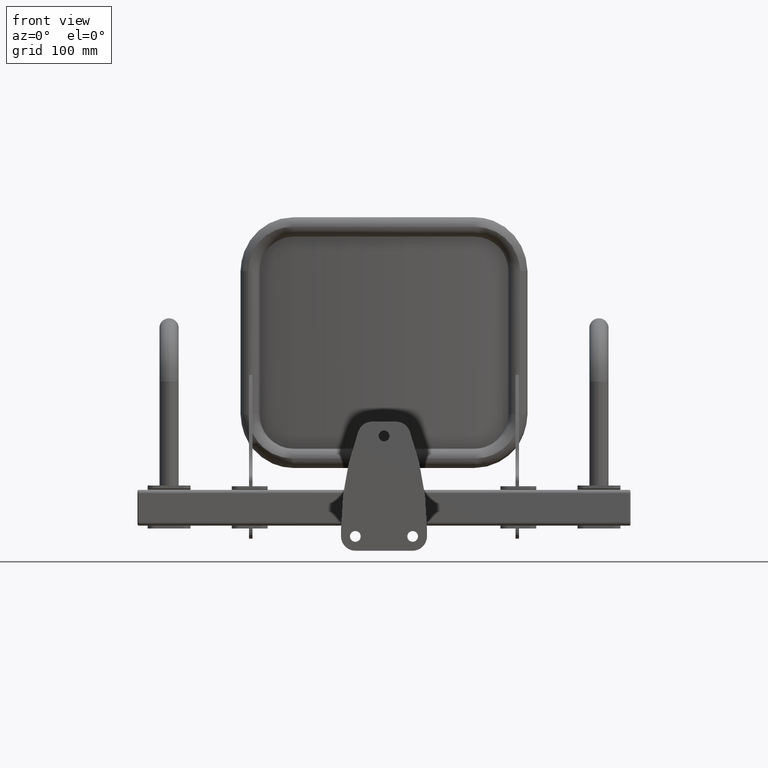
[diagram: clean part render]
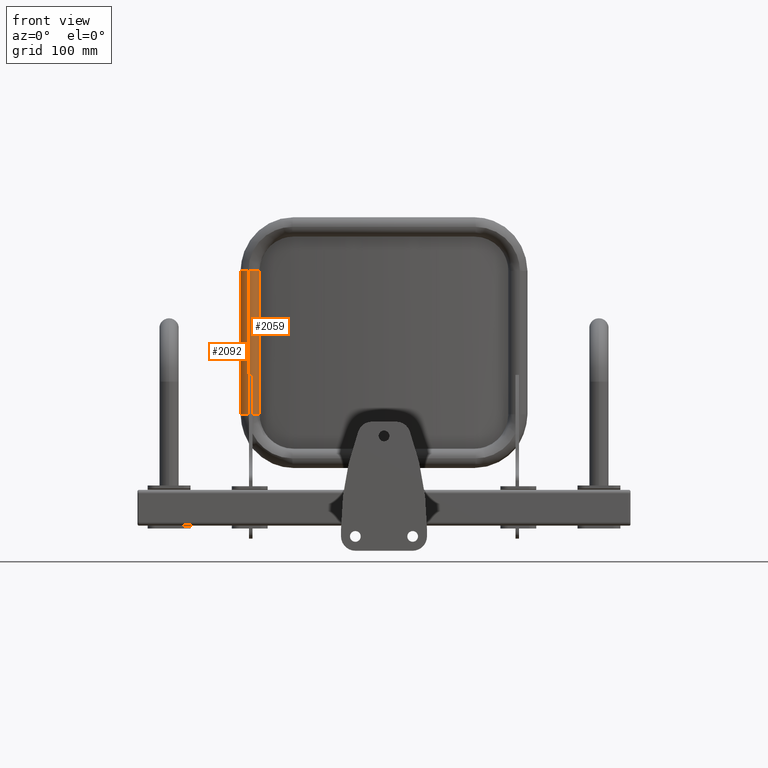
[diagram: same view with one multi-face feature highlighted, each face labeled with its STEP entity id]
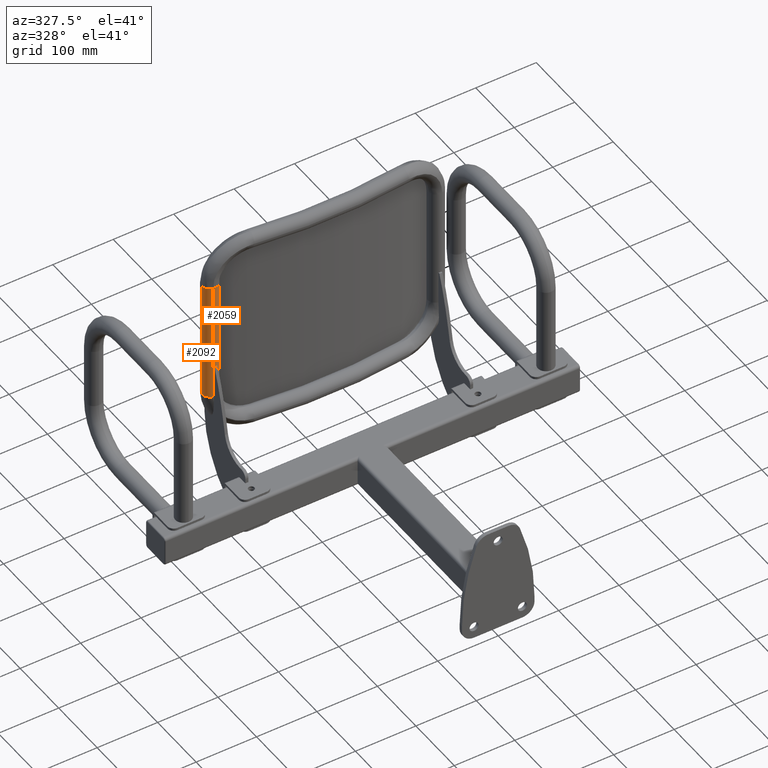
[diagram: same view with one multi-face feature highlighted, each face labeled with its STEP entity id]
A machine part, front view. The highlighted faces form ONE feature: a constant-radius fillet chain: 2 tangent blend faces with common blend radius 13.45 mm. The faces share edges in the B-rep.
A second angle (auxiliary view) of the same feature is appended — it is thin or edge-on in the first view.
Their STEP definitions:
[1] entity #2059 (Cylinder):
#27 = EDGE_CURVE ( 'NONE', #9449, #9481, #6355, .T. ) ;
#32 = EDGE_CURVE ( 'NONE', #7043, #1785, #6348, .T. ) ;
#33 = EDGE_CURVE ( 'NONE', #1785, #9449, #6359, .T. ) ;
#34 = EDGE_CURVE ( 'NONE', #9481, #9467, #6356, .T. ) ;
#35 = EDGE_CURVE ( 'NONE', #1796, #9467, #6361, .T. ) ;
#36 = EDGE_CURVE ( 'NONE', #5020, #5030, #6357, .T. ) ;
#37 = EDGE_CURVE ( 'NONE', #7043, #5030, #6364, .T. ) ;
#1595 = CARTESIAN_POINT ( 'NONE',  ( -183.5000000000000000, -15.82520922387020300, -100.0000000000000000 ) ) ;
#1613 = CARTESIAN_POINT ( 'NONE',  ( -173.7084834243087000, -5.689957515842398700, 100.0000000000000000 ) ) ;
#1627 = CARTESIAN_POINT ( 'NONE',  ( -173.7084834243087000, -5.689957515842372100, -100.0000000000000000 ) ) ;
#1785 = VERTEX_POINT ( 'NONE', #3302 ) ;
#1796 = VERTEX_POINT ( 'NONE', #3318 ) ;
#1923 = ORIENTED_EDGE ( 'NONE', *, *, #27, .T. ) ;
#2059 = ADVANCED_FACE ( 'NONE', ( #8591 ), #8595, .T. ) ;
#2925 = EDGE_CURVE ( 'NONE', #5020, #1796, #5631, .T. ) ;
#3302 = CARTESIAN_POINT ( 'NONE',  ( -183.5000000000000000, -15.82520922387022800, -45.00000000000001400 ) ) ;
#3318 = CARTESIAN_POINT ( 'NONE',  ( -189.5459862649256600, -15.97324237967123800, 100.0000000000000000 ) ) ;
#3492 = DIRECTION ( 'NONE',  ( 1.000000000000000000, 0.0000000000000000000, 0.0000000000000000000 ) ) ;
#3498 = CARTESIAN_POINT ( 'NONE',  ( -186.8437831643234100, -2.797484397562754600, -100.0000000000000000 ) ) ;
#3499 = DIRECTION ( 'NONE',  ( 0.0000000000000000000, 0.0000000000000000000, 1.000000000000000000 ) ) ;
#3500 = DIRECTION ( 'NONE',  ( 1.000000000000000000, 0.0000000000000000000, 0.0000000000000000000 ) ) ;
#4791 = DIRECTION ( 'NONE',  ( 0.0000000000000000000, 0.0000000000000000000, 1.000000000000000000 ) ) ;
#4796 = CARTESIAN_POINT ( 'NONE',  ( -189.5459862649256900, -15.97324237967134800, 175.0000000000000000 ) ) ;
#4948 = CARTESIAN_POINT ( 'NONE',  ( -183.5000000000000000, -15.82520922387022800, 175.0000000000000000 ) ) ;
#4986 = CARTESIAN_POINT ( 'NONE',  ( -186.8437831643233800, -2.797484397562777200, -45.00000000000001400 ) ) ;
#4987 = DIRECTION ( 'NONE',  ( -0.0000000000000000000, -2.618450529776312800E-016, 1.000000000000000000 ) ) ;
#4988 = DIRECTION ( 'NONE',  ( 0.0000000000000000000, 1.000000000000000000, 5.159028924838088600E-016 ) ) ;
#4989 = DIRECTION ( 'NONE',  ( -0.0000000000000000000, -0.0000000000000000000, -1.000000000000000000 ) ) ;
#4990 = CARTESIAN_POINT ( 'NONE',  ( -173.7084834243087000, -5.689957515842372100, 100.0000000000000000 ) ) ;
#4991 = DIRECTION ( 'NONE',  ( 0.0000000000000000000, 0.0000000000000000000, 1.000000000000000000 ) ) ;
#4992 = DIRECTION ( 'NONE',  ( -0.0000000000000000000, -0.0000000000000000000, -1.000000000000000000 ) ) ;
#4993 = CARTESIAN_POINT ( 'NONE',  ( -188.5000000000000000, -16.14512260786879600, 175.0000000000000000 ) ) ;
#4994 = CARTESIAN_POINT ( 'NONE',  ( -186.8437831643233600, -2.797484397562758100, 100.0000000000000000 ) ) ;
#4995 = DIRECTION ( 'NONE',  ( 0.0000000000000000000, 0.0000000000000000000, 1.000000000000000000 ) ) ;
#5020 = VERTEX_POINT ( 'NONE', #7886 ) ;
#5030 = VERTEX_POINT ( 'NONE', #7896 ) ;
#5180 = DIRECTION ( 'NONE',  ( -0.0000000000000000000, -0.0000000000000000000, -1.000000000000000000 ) ) ;
#5182 = DIRECTION ( 'NONE',  ( -1.000000000000000000, 0.0000000000000000000, 0.0000000000000000000 ) ) ;
#5185 = CARTESIAN_POINT ( 'NONE',  ( -186.8437831643233800, -2.797484397562777200, 175.0000000000000000 ) ) ;
#5490 = ORIENTED_EDGE ( 'NONE', *, *, #35, .F. ) ;
#5494 = ORIENTED_EDGE ( 'NONE', *, *, #36, .T. ) ;
#5496 = ORIENTED_EDGE ( 'NONE', *, *, #32, .T. ) ;
#5503 = ORIENTED_EDGE ( 'NONE', *, *, #2925, .F. ) ;
#5506 = ORIENTED_EDGE ( 'NONE', *, *, #33, .T. ) ;
#5631 = LINE ( 'NONE', #4796, #5633 ) ;
#5633 = VECTOR ( 'NONE', #4791, 1000.000000000000000 ) ;
#5800 = CARTESIAN_POINT ( 'NONE',  ( -186.8437831643234100, -2.797484397562754600, -100.0000000000000000 ) ) ;
#5801 = DIRECTION ( 'NONE',  ( 0.0000000000000000000, 0.0000000000000000000, 1.000000000000000000 ) ) ;
#5802 = DIRECTION ( 'NONE',  ( 1.000000000000000000, 0.0000000000000000000, 0.0000000000000000000 ) ) ;
#5943 = ORIENTED_EDGE ( 'NONE', *, *, #34, .T. ) ;
#5956 = ORIENTED_EDGE ( 'NONE', *, *, #37, .F. ) ;
#6348 = CIRCLE ( 'NONE', #9506, 13.44999999999999900 ) ;
#6355 = CIRCLE ( 'NONE', #9504, 13.44999999999999000 ) ;
#6356 = LINE ( 'NONE', #4990, #6362 ) ;
#6357 = CIRCLE ( 'NONE', #9508, 13.44999999999999000 ) ;
#6359 = LINE ( 'NONE', #4948, #6360 ) ;
#6360 = VECTOR ( 'NONE', #4989, 1000.000000000000000 ) ;
#6361 = CIRCLE ( 'NONE', #9507, 13.44999999999999000 ) ;
#6362 = VECTOR ( 'NONE', #4991, 1000.000000000000000 ) ;
#6364 = LINE ( 'NONE', #4993, #6366 ) ;
#6366 = VECTOR ( 'NONE', #4992, 1000.000000000000000 ) ;
#7043 = VERTEX_POINT ( 'NONE', #8139 ) ;
#7886 = CARTESIAN_POINT ( 'NONE',  ( -189.5459862649257200, -15.97324237967123400, -100.0000000000000000 ) ) ;
#7896 = CARTESIAN_POINT ( 'NONE',  ( -188.5000000000000000, -16.14512260786877800, -100.0000000000000000 ) ) ;
#8139 = CARTESIAN_POINT ( 'NONE',  ( -188.5000000000000000, -16.14512260786879600, -45.00000000000001400 ) ) ;
#8591 = FACE_OUTER_BOUND ( 'NONE', #9945, .T. ) ;
#8595 = CYLINDRICAL_SURFACE ( 'NONE', #9547, 13.44999999999999000 ) ;
#9449 = VERTEX_POINT ( 'NONE', #1595 ) ;
#9467 = VERTEX_POINT ( 'NONE', #1613 ) ;
#9481 = VERTEX_POINT ( 'NONE', #1627 ) ;
#9504 = AXIS2_PLACEMENT_3D ( 'NONE', #3498, #3499, #3500 ) ;
#9506 = AXIS2_PLACEMENT_3D ( 'NONE', #4986, #4987, #4988 ) ;
#9507 = AXIS2_PLACEMENT_3D ( 'NONE', #4994, #4995, #3492 ) ;
#9508 = AXIS2_PLACEMENT_3D ( 'NONE', #5800, #5801, #5802 ) ;
#9547 = AXIS2_PLACEMENT_3D ( 'NONE', #5185, #5180, #5182 ) ;
#9945 = EDGE_LOOP ( 'NONE', ( #5496, #5506, #1923, #5943, #5490, #5503, #5494, #5956 ) ) ;
[2] entity #2092 (Cylinder):
#1575 = CARTESIAN_POINT ( 'NONE',  ( -200.2937831643233700, -2.797484397562777200, -100.0000000000000000 ) ) ;
#1621 = CARTESIAN_POINT ( 'NONE',  ( -200.2937831643233400, -2.797484397562777200, 100.0000000000000000 ) ) ;
#1796 = VERTEX_POINT ( 'NONE', #3318 ) ;
#2092 = ADVANCED_FACE ( 'NONE', ( #8647 ), #8655, .T. ) ;
#2916 = EDGE_CURVE ( 'NONE', #9434, #5020, #5614, .T. ) ;
#2921 = EDGE_CURVE ( 'NONE', #9475, #9434, #5622, .T. ) ;
#2924 = EDGE_CURVE ( 'NONE', #9475, #1796, #5627, .T. ) ;
#2925 = EDGE_CURVE ( 'NONE', #5020, #1796, #5631, .T. ) ;
#3318 = CARTESIAN_POINT ( 'NONE',  ( -189.5459862649256600, -15.97324237967123800, 100.0000000000000000 ) ) ;
#3589 = DIRECTION ( 'NONE',  ( -1.000000000000000000, 0.0000000000000000000, 0.0000000000000000000 ) ) ;
#3590 = CARTESIAN_POINT ( 'NONE',  ( -186.8437831643233800, -2.797484397562777200, 175.0000000000000000 ) ) ;
#3591 = DIRECTION ( 'NONE',  ( -0.0000000000000000000, -0.0000000000000000000, -1.000000000000000000 ) ) ;
#4766 = CARTESIAN_POINT ( 'NONE',  ( -186.8437831643233800, -2.797484397562799900, -100.0000000000000000 ) ) ;
#4767 = DIRECTION ( 'NONE',  ( 0.0000000000000000000, 0.0000000000000000000, 1.000000000000000000 ) ) ;
#4769 = DIRECTION ( 'NONE',  ( 1.000000000000000000, 0.0000000000000000000, 0.0000000000000000000 ) ) ;
#4778 = DIRECTION ( 'NONE',  ( -0.0000000000000000000, -0.0000000000000000000, -1.000000000000000000 ) ) ;
#4784 = CARTESIAN_POINT ( 'NONE',  ( -200.2937831643233700, -2.797484397562777200, 175.0000000000000000 ) ) ;
#4791 = DIRECTION ( 'NONE',  ( 0.0000000000000000000, 0.0000000000000000000, 1.000000000000000000 ) ) ;
#4796 = CARTESIAN_POINT ( 'NONE',  ( -189.5459862649256900, -15.97324237967134800, 175.0000000000000000 ) ) ;
#4801 = CARTESIAN_POINT ( 'NONE',  ( -186.8437831643233600, -2.797484397562775400, 100.0000000000000000 ) ) ;
#4802 = DIRECTION ( 'NONE',  ( 0.0000000000000000000, 0.0000000000000000000, 1.000000000000000000 ) ) ;
#4804 = DIRECTION ( 'NONE',  ( 1.000000000000000000, 0.0000000000000000000, 0.0000000000000000000 ) ) ;
#5020 = VERTEX_POINT ( 'NONE', #7886 ) ;
#5614 = CIRCLE ( 'NONE', #10162, 13.44999999999999000 ) ;
#5622 = LINE ( 'NONE', #4784, #5626 ) ;
#5626 = VECTOR ( 'NONE', #4778, 1000.000000000000000 ) ;
#5627 = CIRCLE ( 'NONE', #10165, 13.44999999999999000 ) ;
#5631 = LINE ( 'NONE', #4796, #5633 ) ;
#5633 = VECTOR ( 'NONE', #4791, 1000.000000000000000 ) ;
#7886 = CARTESIAN_POINT ( 'NONE',  ( -189.5459862649257200, -15.97324237967123400, -100.0000000000000000 ) ) ;
#8647 = FACE_OUTER_BOUND ( 'NONE', #9928, .T. ) ;
#8655 = CYLINDRICAL_SURFACE ( 'NONE', #9577, 13.44999999999999000 ) ;
#9265 = ORIENTED_EDGE ( 'NONE', *, *, #2921, .T. ) ;
#9274 = ORIENTED_EDGE ( 'NONE', *, *, #2916, .T. ) ;
#9275 = ORIENTED_EDGE ( 'NONE', *, *, #2924, .F. ) ;
#9276 = ORIENTED_EDGE ( 'NONE', *, *, #2925, .T. ) ;
#9434 = VERTEX_POINT ( 'NONE', #1575 ) ;
#9475 = VERTEX_POINT ( 'NONE', #1621 ) ;
#9577 = AXIS2_PLACEMENT_3D ( 'NONE', #3590, #3591, #3589 ) ;
#9928 = EDGE_LOOP ( 'NONE', ( #9275, #9265, #9274, #9276 ) ) ;
#10162 = AXIS2_PLACEMENT_3D ( 'NONE', #4766, #4767, #4769 ) ;
#10165 = AXIS2_PLACEMENT_3D ( 'NONE', #4801, #4802, #4804 ) ;